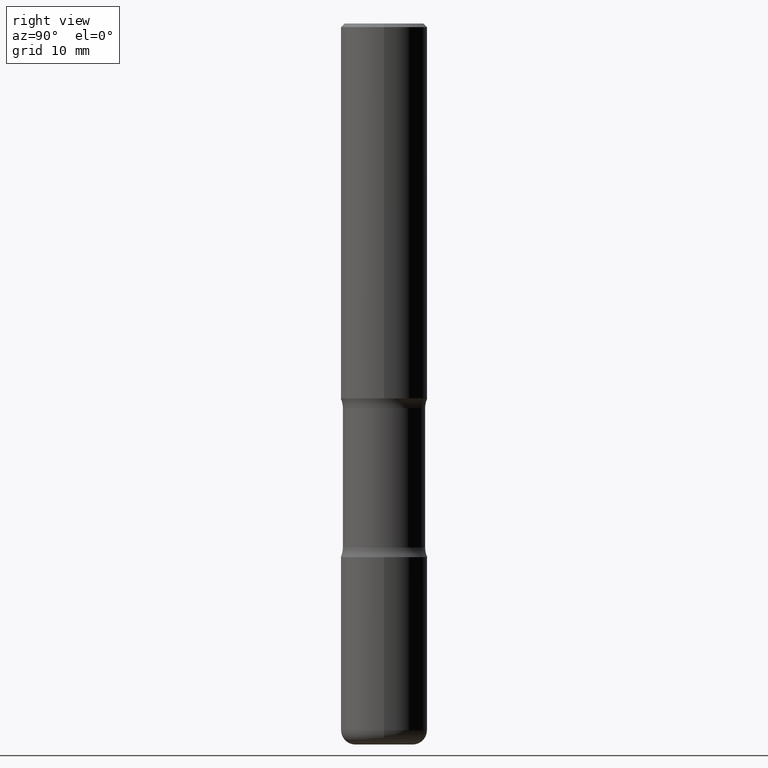
[diagram: clean part render]
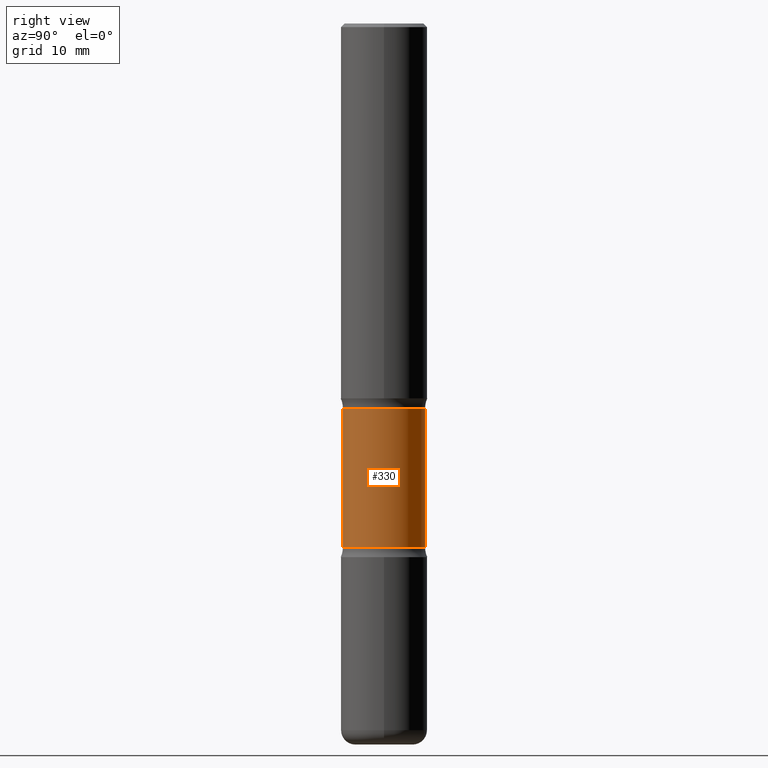
[diagram: same view with one face highlighted and labeled with its STEP entity id]
A machine part, right view. The second image highlights one B-rep face of the part: STEP entity #330.
In plain terms, the highlighted cylindrical surface (partial cylindrical patch) has radius 5.6998 mm, axis along (0, -0, -1).
Its self-contained STEP definition (entity closure, byte-faithful):
#3 = DIRECTION ( 'NONE',  ( 6.982962677686265922E-15, 1.000000000000000000, -2.434802133390609421E-15 ) ) ;
#12 = DIRECTION ( 'NONE',  ( 6.982962677686265922E-15, 1.000000000000000000, -2.434802133390609815E-15 ) ) ;
#16 = CIRCLE ( 'NONE', #311, 0.2243999999999999606 ) ;
#54 = EDGE_CURVE ( 'NONE', #200, #549, #429, .T. ) ;
#57 = CARTESIAN_POINT ( 'NONE',  ( 9.710227154047748282E-29, -1.362793696358492956E-14, -3.937000000000000277 ) ) ;
#58 = EDGE_CURVE ( 'NONE', #200, #493, #283, .T. ) ;
#77 = EDGE_CURVE ( 'NONE', #549, #237, #16, .T. ) ;
#85 = CARTESIAN_POINT ( 'NONE',  ( 5.070539682259229331E-29, -7.426630284172150130E-15, -2.100216601173595432 ) ) ;
#91 = FACE_OUTER_BOUND ( 'NONE', #376, .T. ) ;
#125 = CARTESIAN_POINT ( 'NONE',  ( 6.990709676060807691E-29, -9.993088279580958225E-15, -2.860383398826405354 ) ) ;
#127 = DIRECTION ( 'NONE',  ( 2.525985086076564115E-29, -3.376177443336566513E-15, -1.000000000000000000 ) ) ;
#130 = DIRECTION ( 'NONE',  ( 6.982962677686265922E-15, 1.000000000000000000, -3.652203200085913934E-15 ) ) ;
#158 = CARTESIAN_POINT ( 'NONE',  ( 1.566976824872867821E-15, 0.2243999999999899686, -2.860383398826405799 ) ) ;
#169 = CARTESIAN_POINT ( 'NONE',  ( 1.566976824872894642E-15, 0.2243999999999863049, -3.937000000000000721 ) ) ;
#184 = AXIS2_PLACEMENT_3D ( 'NONE', #85, #467, #130 ) ;
#200 = VERTEX_POINT ( 'NONE', #406 ) ;
#214 = CARTESIAN_POINT ( 'NONE',  ( -1.539495750699834052E-15, -0.2244000000000135608, -3.936999999999999389 ) ) ;
#217 = DIRECTION ( 'NONE',  ( 2.525985086076564115E-29, -3.376177443336566513E-15, -1.000000000000000000 ) ) ;
#237 = VERTEX_POINT ( 'NONE', #428 ) ;
#254 = LINE ( 'NONE', #214, #346 ) ;
#261 = CYLINDRICAL_SURFACE ( 'NONE', #402, 0.2243999999999999329 ) ;
#262 = DIRECTION ( 'NONE',  ( 2.525985086076564115E-29, -3.376177443336566513E-15, -1.000000000000000000 ) ) ;
#279 = ORIENTED_EDGE ( 'NONE', *, *, #54, .F. ) ;
#281 = ORIENTED_EDGE ( 'NONE', *, *, #355, .T. ) ;
#283 = CIRCLE ( 'NONE', #184, 0.2243999999999999606 ) ;
#290 = ORIENTED_EDGE ( 'NONE', *, *, #58, .T. ) ;
#311 = AXIS2_PLACEMENT_3D ( 'NONE', #125, #127, #3 ) ;
#330 = ADVANCED_FACE ( 'NONE', ( #91 ), #261, .T. ) ;
#346 = VECTOR ( 'NONE', #383, 39.37007874015748143 ) ;
#355 = EDGE_CURVE ( 'NONE', #493, #237, #254, .T. ) ;
#358 = CARTESIAN_POINT ( 'NONE',  ( -1.579972688886734072E-15, -0.2244000000000073713, -2.100216601173594544 ) ) ;
#376 = EDGE_LOOP ( 'NONE', ( #290, #281, #536, #279 ) ) ;
#383 = DIRECTION ( 'NONE',  ( 2.525985086076564115E-29, -3.376177443336566513E-15, -1.000000000000000000 ) ) ;
#402 = AXIS2_PLACEMENT_3D ( 'NONE', #57, #217, #12 ) ;
#406 = CARTESIAN_POINT ( 'NONE',  ( 1.566976824872848494E-15, 0.2243999999999925499, -2.100216601173596320 ) ) ;
#428 = CARTESIAN_POINT ( 'NONE',  ( -1.579972688886713168E-15, -0.2244000000000099804, -2.860383398826404466 ) ) ;
#429 = LINE ( 'NONE', #169, #444 ) ;
#444 = VECTOR ( 'NONE', #262, 39.37007874015748143 ) ;
#467 = DIRECTION ( 'NONE',  ( 2.525985086076564115E-29, -3.376177443336566513E-15, -1.000000000000000000 ) ) ;
#493 = VERTEX_POINT ( 'NONE', #358 ) ;
#536 = ORIENTED_EDGE ( 'NONE', *, *, #77, .F. ) ;
#549 = VERTEX_POINT ( 'NONE', #158 ) ;